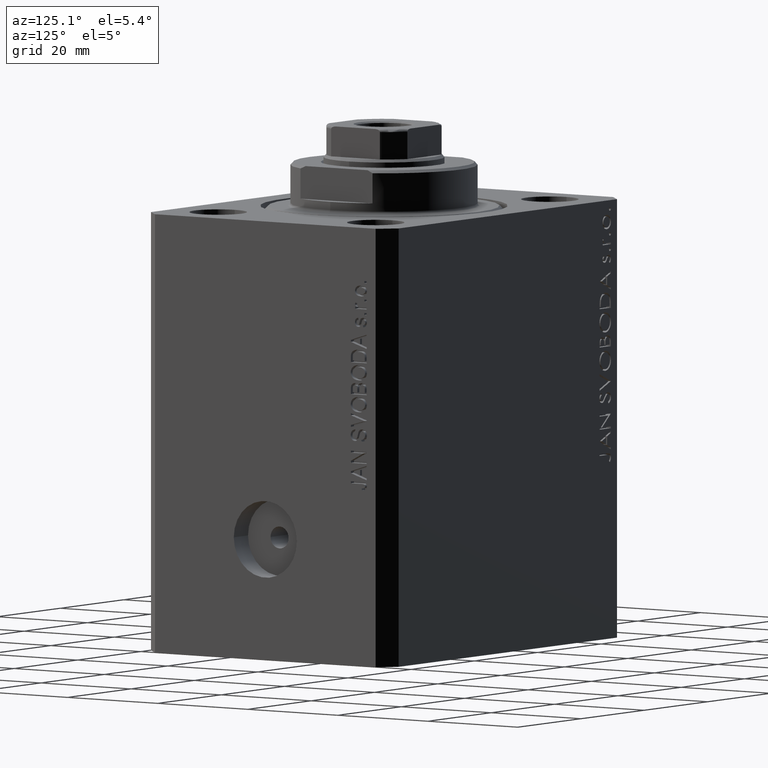
[diagram: clean part render]
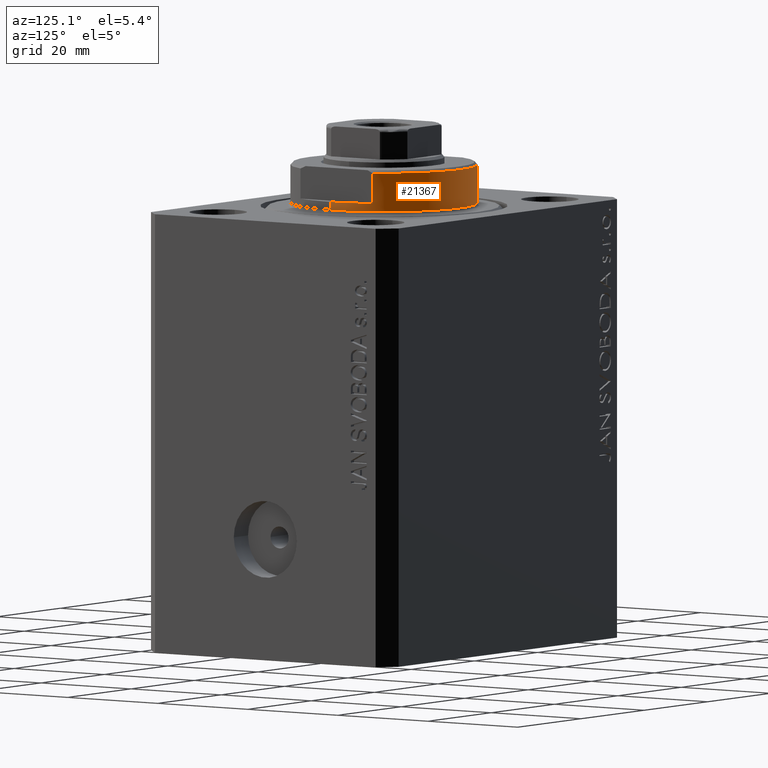
[diagram: same view with one face highlighted and labeled with its STEP entity id]
A machine part, auxiliary view. The second image highlights one B-rep face of the part: STEP entity #21367.
In plain terms, the highlighted cylindrical surface (partial cylindrical patch) has radius 17 mm, axis along (0, 0, -1).
Its self-contained STEP definition (entity closure, byte-faithful):
#141 = CARTESIAN_POINT ( 'NONE',  ( 15.00000000000000000, 8.000000000000001776, -7.500000000000013323 ) ) ;
#179 = VERTEX_POINT ( 'NONE', #141 ) ;
#1740 = CIRCLE ( 'NONE', #23424, 17.00000000000000000 ) ;
#1891 = EDGE_CURVE ( 'NONE', #43297, #33018, #1740, .T. ) ;
#1915 = CARTESIAN_POINT ( 'NONE',  ( 17.00000000000000000, 0.000000000000000000, -0.5000000000000004441 ) ) ;
#2247 = VERTEX_POINT ( 'NONE', #19317 ) ;
#2369 = FACE_OUTER_BOUND ( 'NONE', #28125, .T. ) ;
#2593 = CYLINDRICAL_SURFACE ( 'NONE', #15823, 17.00000000000000000 ) ;
#2758 = EDGE_CURVE ( 'NONE', #2247, #21312, #29950, .T. ) ;
#4714 = DIRECTION ( 'NONE',  ( -0.000000000000000000, -0.000000000000000000, -1.000000000000000000 ) ) ;
#5004 = AXIS2_PLACEMENT_3D ( 'NONE', #19351, #29290, #33152 ) ;
#5390 = CARTESIAN_POINT ( 'NONE',  ( 0.000000000000000000, 0.000000000000000000, -0.5000000000000004441 ) ) ;
#6548 = ORIENTED_EDGE ( 'NONE', *, *, #28318, .T. ) ;
#6842 = AXIS2_PLACEMENT_3D ( 'NONE', #11678, #29557, #18930 ) ;
#6887 = CARTESIAN_POINT ( 'NONE',  ( 15.00000000000000000, 8.000000000000001776, -8.000000000000000000 ) ) ;
#7274 = ORIENTED_EDGE ( 'NONE', *, *, #28647, .T. ) ;
#8121 = CARTESIAN_POINT ( 'NONE',  ( -15.00000000000000000, 8.000000000000001776, -7.500000000000013323 ) ) ;
#8375 = ORIENTED_EDGE ( 'NONE', *, *, #23207, .F. ) ;
#9931 = ORIENTED_EDGE ( 'NONE', *, *, #35205, .T. ) ;
#10320 = CARTESIAN_POINT ( 'NONE',  ( 17.00000000000000000, 0.000000000000000000, -2.000000000000000000 ) ) ;
#10705 = VERTEX_POINT ( 'NONE', #8121 ) ;
#11384 = DIRECTION ( 'NONE',  ( -0.000000000000000000, -0.000000000000000000, 1.000000000000000000 ) ) ;
#11630 = LINE ( 'NONE', #15467, #40809 ) ;
#11678 = CARTESIAN_POINT ( 'NONE',  ( 0.000000000000000000, 0.000000000000000000, -7.500000000000013323 ) ) ;
#11762 = ORIENTED_EDGE ( 'NONE', *, *, #31280, .F. ) ;
#13096 = ORIENTED_EDGE ( 'NONE', *, *, #2758, .T. ) ;
#14016 = DIRECTION ( 'NONE',  ( -1.000000000000000000, 0.000000000000000000, 0.000000000000000000 ) ) ;
#15467 = CARTESIAN_POINT ( 'NONE',  ( -17.00000000000000000, 2.081899558550500280E-15, -8.000000000000000000 ) ) ;
#15823 = AXIS2_PLACEMENT_3D ( 'NONE', #16413, #30204, #23406 ) ;
#16252 = CIRCLE ( 'NONE', #6842, 17.00000000000000000 ) ;
#16343 = VERTEX_POINT ( 'NONE', #24903 ) ;
#16413 = CARTESIAN_POINT ( 'NONE',  ( 0.000000000000000000, 0.000000000000000000, -8.000000000000000000 ) ) ;
#18089 = CARTESIAN_POINT ( 'NONE',  ( 0.000000000000000000, 0.000000000000000000, -2.000000000000000000 ) ) ;
#18930 = DIRECTION ( 'NONE',  ( -1.000000000000000000, 0.000000000000000000, 0.000000000000000000 ) ) ;
#19084 = CARTESIAN_POINT ( 'NONE',  ( 17.00000000000000000, 0.000000000000000000, -8.000000000000000000 ) ) ;
#19317 = CARTESIAN_POINT ( 'NONE',  ( -17.00000000000000000, 2.081899558550500280E-15, -0.5000000000000004441 ) ) ;
#19351 = CARTESIAN_POINT ( 'NONE',  ( 0.000000000000000000, 0.000000000000000000, -2.000000000000000000 ) ) ;
#19452 = CIRCLE ( 'NONE', #5004, 17.00000000000000000 ) ;
#19876 = LINE ( 'NONE', #33678, #35179 ) ;
#21038 = DIRECTION ( 'NONE',  ( 0.000000000000000000, 0.000000000000000000, -1.000000000000000000 ) ) ;
#21307 = EDGE_CURVE ( 'NONE', #16343, #36313, #19452, .T. ) ;
#21312 = VERTEX_POINT ( 'NONE', #1915 ) ;
#21367 = ADVANCED_FACE ( 'NONE', ( #2369 ), #2593, .T. ) ;
#22929 = DIRECTION ( 'NONE',  ( -0.000000000000000000, -0.000000000000000000, 1.000000000000000000 ) ) ;
#23207 = EDGE_CURVE ( 'NONE', #179, #16343, #37887, .T. ) ;
#23406 = DIRECTION ( 'NONE',  ( 1.000000000000000000, 0.000000000000000000, 0.000000000000000000 ) ) ;
#23424 = AXIS2_PLACEMENT_3D ( 'NONE', #18089, #21038, #14016 ) ;
#24903 = CARTESIAN_POINT ( 'NONE',  ( 14.99999999999999645, 8.000000000000003553, -2.000000000000000000 ) ) ;
#25533 = DIRECTION ( 'NONE',  ( 1.000000000000000000, 0.000000000000000000, 0.000000000000000000 ) ) ;
#26387 = CARTESIAN_POINT ( 'NONE',  ( -14.99999999999999645, 8.000000000000003553, -2.000000000000000000 ) ) ;
#28125 = EDGE_LOOP ( 'NONE', ( #37886, #7274, #13096, #11762, #39842, #8375, #6548, #9931 ) ) ;
#28318 = EDGE_CURVE ( 'NONE', #179, #10705, #16252, .T. ) ;
#28647 = EDGE_CURVE ( 'NONE', #43297, #2247, #11630, .T. ) ;
#29290 = DIRECTION ( 'NONE',  ( 0.000000000000000000, 0.000000000000000000, -1.000000000000000000 ) ) ;
#29305 = VECTOR ( 'NONE', #11384, 1000.000000000000000 ) ;
#29557 = DIRECTION ( 'NONE',  ( 0.000000000000000000, 0.000000000000000000, 1.000000000000000000 ) ) ;
#29950 = CIRCLE ( 'NONE', #35069, 17.00000000000000000 ) ;
#30204 = DIRECTION ( 'NONE',  ( -0.000000000000000000, -0.000000000000000000, 1.000000000000000000 ) ) ;
#31280 = EDGE_CURVE ( 'NONE', #36313, #21312, #42807, .T. ) ;
#33018 = VERTEX_POINT ( 'NONE', #26387 ) ;
#33152 = DIRECTION ( 'NONE',  ( -1.000000000000000000, 0.000000000000000000, 0.000000000000000000 ) ) ;
#33678 = CARTESIAN_POINT ( 'NONE',  ( -15.00000000000000000, 8.000000000000001776, -8.000000000000000000 ) ) ;
#34486 = DIRECTION ( 'NONE',  ( -0.000000000000000000, -0.000000000000000000, 1.000000000000000000 ) ) ;
#34660 = VECTOR ( 'NONE', #34486, 1000.000000000000000 ) ;
#35069 = AXIS2_PLACEMENT_3D ( 'NONE', #5390, #4714, #25533 ) ;
#35179 = VECTOR ( 'NONE', #42927, 1000.000000000000000 ) ;
#35205 = EDGE_CURVE ( 'NONE', #10705, #33018, #19876, .T. ) ;
#36313 = VERTEX_POINT ( 'NONE', #10320 ) ;
#37886 = ORIENTED_EDGE ( 'NONE', *, *, #1891, .F. ) ;
#37887 = LINE ( 'NONE', #6887, #34660 ) ;
#39842 = ORIENTED_EDGE ( 'NONE', *, *, #21307, .F. ) ;
#40658 = CARTESIAN_POINT ( 'NONE',  ( -17.00000000000000000, 2.081899558550500280E-15, -2.000000000000000000 ) ) ;
#40809 = VECTOR ( 'NONE', #22929, 1000.000000000000000 ) ;
#42807 = LINE ( 'NONE', #19084, #29305 ) ;
#42927 = DIRECTION ( 'NONE',  ( -0.000000000000000000, -0.000000000000000000, 1.000000000000000000 ) ) ;
#43297 = VERTEX_POINT ( 'NONE', #40658 ) ;